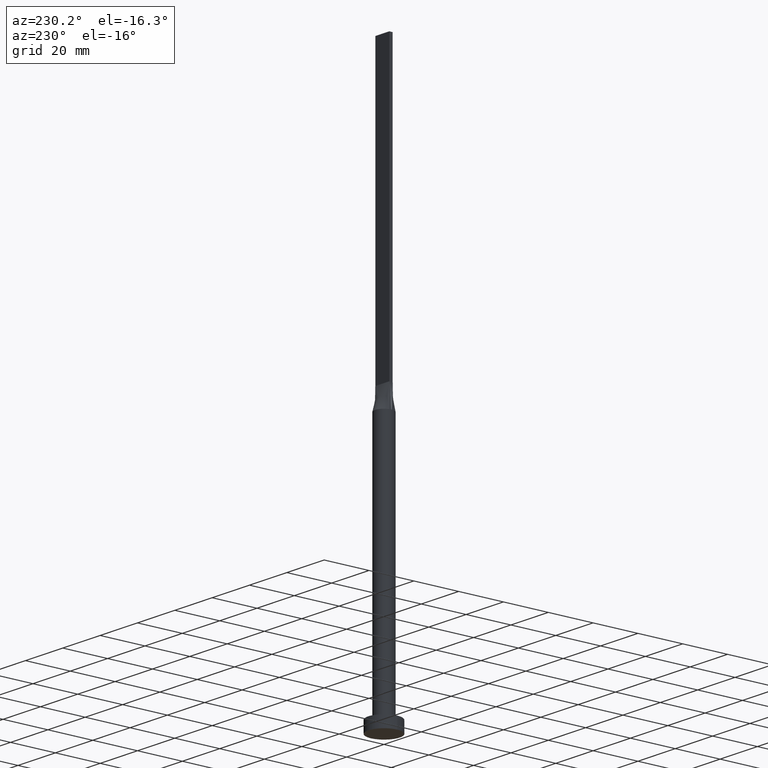
[diagram: clean part render]
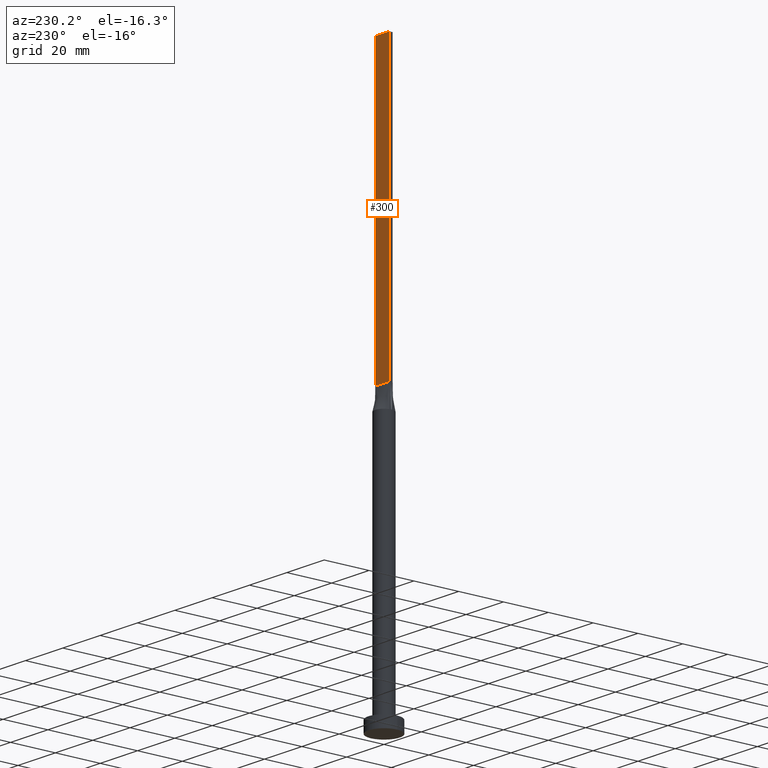
[diagram: same view with one face highlighted and labeled with its STEP entity id]
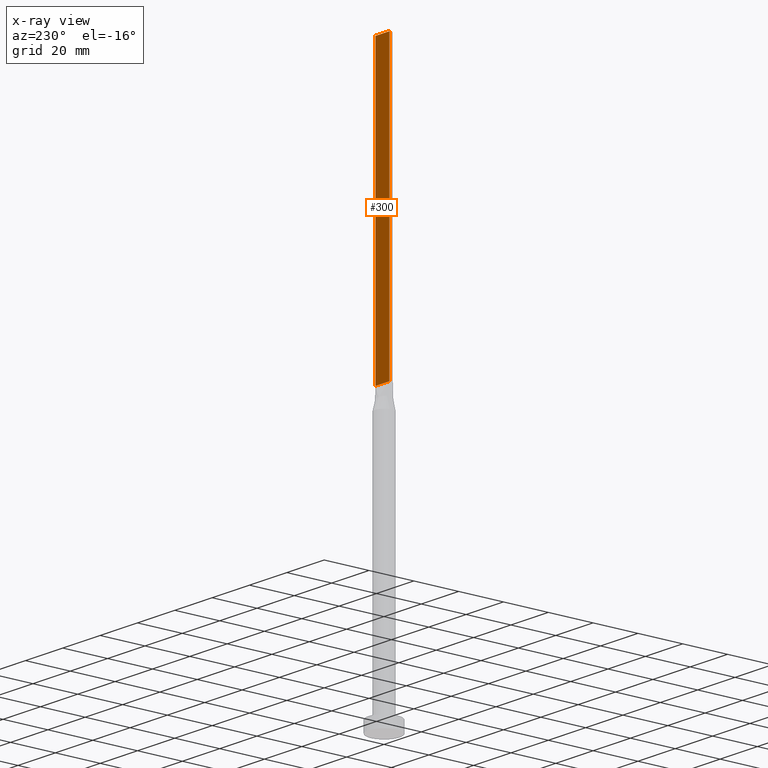
[diagram: x-ray of the same camera — body ghosted, the highlighted face saturated]
A machine part, auxiliary view. The second image highlights one B-rep face of the part: STEP entity #300.
The next image is the same camera in x-ray: the body ghosted, the highlighted face saturated — about 0% of this face is hidden behind the body in this view.
In plain terms, the highlighted planar face has unit normal (0, -1, 0).
Its self-contained STEP definition (entity closure, byte-faithful):
#5 = EDGE_CURVE ( 'NONE', #505, #11, #339, .T. ) ;
#11 = VERTEX_POINT ( 'NONE', #484 ) ;
#43 = DIRECTION ( 'NONE',  ( -1.000000000000000000, -0.000000000000000000, -0.000000000000000000 ) ) ;
#49 = CARTESIAN_POINT ( 'NONE',  ( -3.750000000000000000, 0.7500000000000002220, 250.0000000000000000 ) ) ;
#70 = CARTESIAN_POINT ( 'NONE',  ( 3.750000000000000000, 0.7500000000000002220, 250.0000000000000000 ) ) ;
#73 = ORIENTED_EDGE ( 'NONE', *, *, #399, .T. ) ;
#99 = VECTOR ( 'NONE', #43, 1000.000000000000000 ) ;
#138 = EDGE_CURVE ( 'NONE', #505, #416, #228, .T. ) ;
#143 = CARTESIAN_POINT ( 'NONE',  ( -3.750000000000000000, 0.7500000000000002220, 125.0000000000000000 ) ) ;
#178 = CARTESIAN_POINT ( 'NONE',  ( 3.750000000000000000, 0.7500000000000002220, 250.0000000000000000 ) ) ;
#188 = DIRECTION ( 'NONE',  ( -0.000000000000000000, -0.000000000000000000, -1.000000000000000000 ) ) ;
#191 = CARTESIAN_POINT ( 'NONE',  ( 3.750000000000000000, 0.7500000000000002220, 125.0000000000000000 ) ) ;
#193 = CARTESIAN_POINT ( 'NONE',  ( 3.750000000000000000, 0.7500000000000002220, 250.0000000000000000 ) ) ;
#201 = CARTESIAN_POINT ( 'NONE',  ( 3.750000000000000000, 0.7500000000000002220, 250.0000000000000000 ) ) ;
#213 = DIRECTION ( 'NONE',  ( -1.000000000000000000, 0.000000000000000000, 0.000000000000000000 ) ) ;
#226 = DIRECTION ( 'NONE',  ( 0.000000000000000000, -0.000000000000000000, -1.000000000000000000 ) ) ;
#228 = LINE ( 'NONE', #178, #281 ) ;
#232 = ORIENTED_EDGE ( 'NONE', *, *, #138, .T. ) ;
#253 = EDGE_CURVE ( 'NONE', #11, #397, #263, .T. ) ;
#263 = LINE ( 'NONE', #49, #380 ) ;
#281 = VECTOR ( 'NONE', #492, 1000.000000000000000 ) ;
#296 = AXIS2_PLACEMENT_3D ( 'NONE', #193, #366, #226 ) ;
#300 = ADVANCED_FACE ( 'NONE', ( #500 ), #319, .F. ) ;
#319 = PLANE ( 'NONE',  #296 ) ;
#339 = LINE ( 'NONE', #201, #378 ) ;
#366 = DIRECTION ( 'NONE',  ( 0.000000000000000000, -1.000000000000000000, 0.000000000000000000 ) ) ;
#369 = LINE ( 'NONE', #498, #99 ) ;
#378 = VECTOR ( 'NONE', #213, 1000.000000000000000 ) ;
#380 = VECTOR ( 'NONE', #188, 1000.000000000000000 ) ;
#397 = VERTEX_POINT ( 'NONE', #143 ) ;
#399 = EDGE_CURVE ( 'NONE', #416, #397, #369, .T. ) ;
#410 = EDGE_LOOP ( 'NONE', ( #73, #536, #456, #232 ) ) ;
#416 = VERTEX_POINT ( 'NONE', #191 ) ;
#456 = ORIENTED_EDGE ( 'NONE', *, *, #5, .F. ) ;
#484 = CARTESIAN_POINT ( 'NONE',  ( -3.750000000000000000, 0.7500000000000002220, 250.0000000000000000 ) ) ;
#492 = DIRECTION ( 'NONE',  ( -0.000000000000000000, -0.000000000000000000, -1.000000000000000000 ) ) ;
#498 = CARTESIAN_POINT ( 'NONE',  ( -3.750000000000000000, 0.7500000000000002220, 125.0000000000000000 ) ) ;
#500 = FACE_OUTER_BOUND ( 'NONE', #410, .T. ) ;
#505 = VERTEX_POINT ( 'NONE', #70 ) ;
#536 = ORIENTED_EDGE ( 'NONE', *, *, #253, .F. ) ;